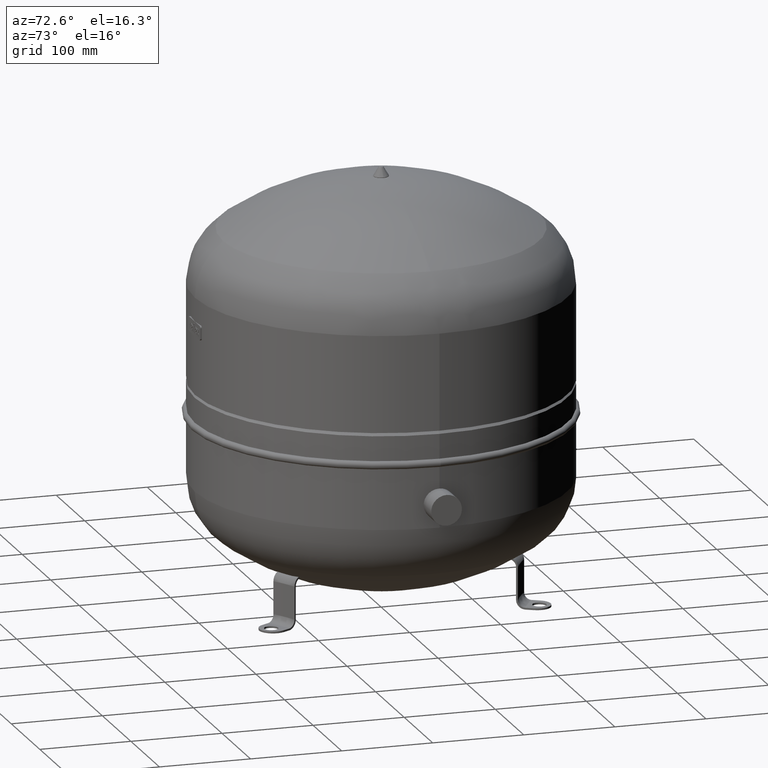
[diagram: clean part render]
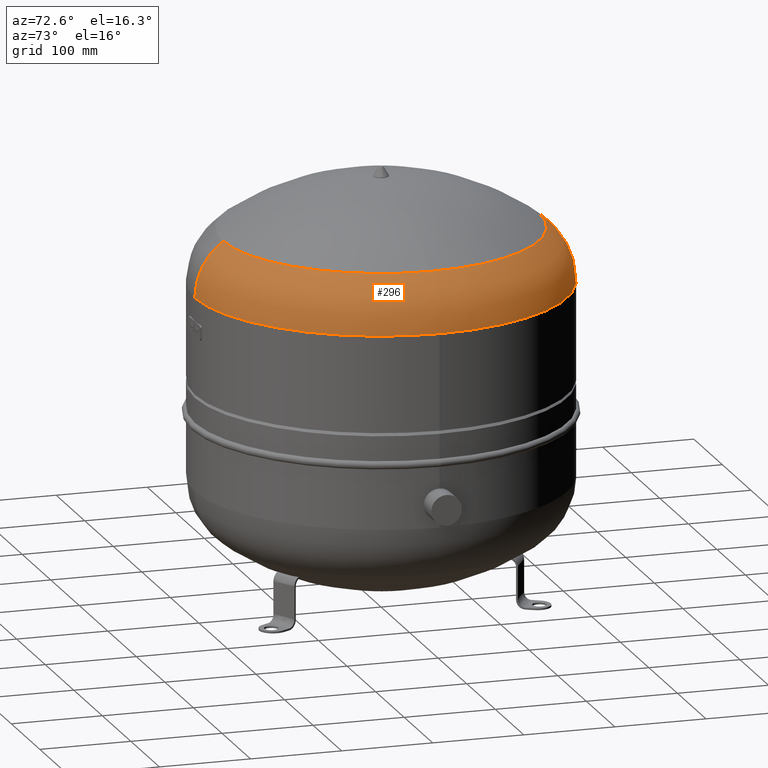
[diagram: same view with one face highlighted and labeled with its STEP entity id]
A machine part, auxiliary view. The second image highlights one B-rep face of the part: STEP entity #296.
In plain terms, the highlighted face is a freeform B-spline surface patch.
Its self-contained STEP definition (entity closure, byte-faithful):
#170=CARTESIAN_POINT('',(204.50000000000003,2.519948E-014,343.85073665903195));
#171=VERTEX_POINT('',#170);
#178=CARTESIAN_POINT('',(4.072433E-015,-204.5,343.85073665903201));
#179=VERTEX_POINT('',#178);
#180=CARTESIAN_POINT('',(3.012668E-017,1.562778E-016,343.85073665903195));
#181=DIRECTION('',(0.0,0.0,1.0));
#182=DIRECTION('',(-1.0,0.0,0.0));
#183=AXIS2_PLACEMENT_3D('',#180,#181,#182);
#184=CIRCLE('',#183,204.5);
#185=EDGE_CURVE('',#179,#171,#184,.T.);
#197=CARTESIAN_POINT('',(-3.213975E-015,59.500000000000057,343.85073665903184));
#198=CARTESIAN_POINT('',(-6.465720E-016,59.500000000000028,416.35073665903178));
#199=CARTESIAN_POINT('',(-9.524968E-015,132.00000000000006,416.35073665903184));
#200=CARTESIAN_POINT('',(-1.840336E-014,204.50000000000011,416.35073665903184));
#201=CARTESIAN_POINT('',(-2.097077E-014,204.50000000000006,343.85073665903178));
#202=CARTESIAN_POINT('',(-59.500000000000043,59.500000000000036,343.85073665903184));
#203=CARTESIAN_POINT('',(-59.5,59.500000000000007,416.35073665903184));
#204=CARTESIAN_POINT('',(-132.00000000000006,132.00000000000003,416.35073665903184));
#205=CARTESIAN_POINT('',(-204.50000000000009,204.50000000000006,416.35073665903184));
#206=CARTESIAN_POINT('',(-204.50000000000003,204.5,343.85073665903178));
#207=CARTESIAN_POINT('',(-59.50000000000005,-7.130130E-015,343.85073665903184));
#208=CARTESIAN_POINT('',(-59.500000000000014,6.187904E-015,416.35073665903178));
#209=CARTESIAN_POINT('',(-132.00000000000006,-2.690492E-015,416.3507366590319));
#210=CARTESIAN_POINT('',(-204.50000000000011,-1.156889E-014,416.35073665903184));
#211=CARTESIAN_POINT('',(-204.50000000000006,-2.488692E-014,343.85073665903184));
#212=CARTESIAN_POINT('',(-59.500000000000021,-59.500000000000057,343.85073665903184));
#213=CARTESIAN_POINT('',(-59.499999999999986,-59.499999999999993,416.35073665903184));
#214=CARTESIAN_POINT('',(-132.0,-132.00000000000003,416.35073665903195));
#215=CARTESIAN_POINT('',(-204.50000000000003,-204.50000000000006,416.35073665903195));
#216=CARTESIAN_POINT('',(-204.5,-204.50000000000003,343.8507366590319));
#217=CARTESIAN_POINT('',(1.135884E-014,-59.500000000000057,343.85073665903184));
#218=CARTESIAN_POINT('',(1.392624E-014,-59.5,416.35073665903178));
#219=CARTESIAN_POINT('',(2.280464E-014,-132.00000000000006,416.35073665903195));
#220=CARTESIAN_POINT('',(3.168304E-014,-204.50000000000011,416.35073665903195));
#221=CARTESIAN_POINT('',(2.911563E-014,-204.50000000000006,343.8507366590319));
#222=CARTESIAN_POINT('',(59.500000000000057,-59.500000000000036,343.85073665903184));
#223=CARTESIAN_POINT('',(59.500000000000014,-59.499999999999979,416.35073665903184));
#224=CARTESIAN_POINT('',(132.00000000000006,-132.0,416.35073665903195));
#225=CARTESIAN_POINT('',(204.50000000000009,-204.50000000000003,416.35073665903195));
#226=CARTESIAN_POINT('',(204.50000000000003,-204.5,343.8507366590319));
#227=CARTESIAN_POINT('',(59.500000000000064,7.442686E-015,343.85073665903184));
#228=CARTESIAN_POINT('',(59.500000000000021,2.076072E-014,416.35073665903178));
#229=CARTESIAN_POINT('',(132.00000000000006,2.963912E-014,416.3507366590319));
#230=CARTESIAN_POINT('',(204.50000000000011,3.851751E-014,416.35073665903184));
#231=CARTESIAN_POINT('',(204.50000000000006,2.519948E-014,343.85073665903184));
#232=CARTESIAN_POINT('',(59.500000000000043,59.500000000000057,343.85073665903184));
#233=CARTESIAN_POINT('',(59.5,59.500000000000021,416.35073665903184));
#234=CARTESIAN_POINT('',(132.0,132.00000000000006,416.35073665903184));
#235=CARTESIAN_POINT('',(204.50000000000003,204.50000000000009,416.35073665903184));
#236=CARTESIAN_POINT('',(204.5,204.50000000000003,343.85073665903178));
#237=CARTESIAN_POINT('',(-3.213975E-015,59.500000000000057,343.85073665903184));
#238=CARTESIAN_POINT('',(-6.465720E-016,59.500000000000028,416.35073665903178));
#239=CARTESIAN_POINT('',(-9.524968E-015,132.00000000000006,416.35073665903184));
#240=CARTESIAN_POINT('',(-1.840336E-014,204.50000000000011,416.35073665903184));
#241=CARTESIAN_POINT('',(-2.097077E-014,204.50000000000006,343.85073665903178));
#249=(BOUNDED_SURFACE()B_SPLINE_SURFACE(2,2,((#197,#202,#207,#212,#217,#222,#227,#232,#237),(#198,#203,#208,#213,#218,#223,#228,#233,#238),(#199,#204,#209,#214,#219,#224,#229,#234,#239),(#200,#205,#210,#215,#220,#225,#230,#235,#240),(#201,#206,#211,#216,#221,#226,#231,#236,#241)),.UNSPECIFIED.,.F.,.T.,.U.)B_SPLINE_SURFACE_WITH_KNOTS((3,2,3),(3,2,2,2,3),(-3.141592653589794,-1.570796326794897,5.181523E-016),(0.0,1.570796326794897,3.141592653589793,4.71238898038469,6.283185307179586),.UNSPECIFIED.)GEOMETRIC_REPRESENTATION_ITEM()RATIONAL_B_SPLINE_SURFACE(((1.0,0.707106781186548,1.0,0.707106781186548,1.0,0.707106781186548,1.0,0.707106781186548,1.0),(0.707106781186547,0.5,0.707106781186547,0.5,0.707106781186547,0.5,0.707106781186547,0.5,0.707106781186547),(1.0,0.707106781186548,1.0,0.707106781186548,1.0,0.707106781186548,1.0,0.707106781186548,1.0),(0.707106781186546,0.499999999999999,0.707106781186546,0.499999999999999,0.707106781186546,0.499999999999999,0.707106781186546,0.499999999999999,0.707106781186546),(1.0,0.707106781186548,1.0,0.707106781186548,1.0,0.707106781186548,1.0,0.707106781186548,1.0)))REPRESENTATION_ITEM('')SURFACE());
#250=CARTESIAN_POINT('',(6.174921E-015,-173.60869565217396,403.22216451894423));
#251=VERTEX_POINT('',#250);
#252=CARTESIAN_POINT('',(4.072433E-015,-132.00000000000006,343.85073665903195));
#253=DIRECTION('',(-1.0,0.0,0.0));
#254=DIRECTION('',(0.0,-1.0,0.0));
#255=AXIS2_PLACEMENT_3D('',#252,#253,#254);
#256=CIRCLE('',#255,72.5);
#257=EDGE_CURVE('',#179,#251,#256,.T.);
#258=ORIENTED_EDGE('',*,*,#257,.F.);
#259=ORIENTED_EDGE('',*,*,#185,.T.);
#260=CARTESIAN_POINT('',(-2.097077E-014,204.5,343.8507366590319));
#261=VERTEX_POINT('',#260);
#262=CARTESIAN_POINT('',(3.012668E-017,1.562778E-016,343.85073665903195));
#263=DIRECTION('',(0.0,0.0,1.0));
#264=DIRECTION('',(-1.0,0.0,0.0));
#265=AXIS2_PLACEMENT_3D('',#262,#263,#264);
#266=CIRCLE('',#265,204.5);
#267=EDGE_CURVE('',#171,#261,#266,.T.);
#268=ORIENTED_EDGE('',*,*,#267,.T.);
#269=CARTESIAN_POINT('',(-1.508531E-014,173.60869565217396,403.22216451894411));
#270=VERTEX_POINT('',#269);
#271=CARTESIAN_POINT('',(-1.209237E-014,132.00000000000006,343.85073665903184));
#272=DIRECTION('',(1.0,0.0,0.0));
#273=DIRECTION('',(0.0,1.0,0.0));
#274=AXIS2_PLACEMENT_3D('',#271,#272,#273);
#275=CIRCLE('',#274,72.5);
#276=EDGE_CURVE('',#261,#270,#275,.T.);
#277=ORIENTED_EDGE('',*,*,#276,.T.);
#278=CARTESIAN_POINT('',(173.60869565217396,-3.444319E-014,403.22216451894417));
#279=VERTEX_POINT('',#278);
#280=CARTESIAN_POINT('',(2.132615E-015,1.106263E-014,403.22216451894417));
#281=DIRECTION('',(0.0,0.0,1.0));
#282=DIRECTION('',(-1.0,0.0,0.0));
#283=AXIS2_PLACEMENT_3D('',#280,#281,#282);
#284=CIRCLE('',#283,173.60869565217396);
#285=EDGE_CURVE('',#279,#270,#284,.T.);
#286=ORIENTED_EDGE('',*,*,#285,.F.);
#287=CARTESIAN_POINT('',(2.132615E-015,1.106263E-014,403.22216451894417));
#288=DIRECTION('',(0.0,0.0,1.0));
#289=DIRECTION('',(-1.0,0.0,0.0));
#290=AXIS2_PLACEMENT_3D('',#287,#288,#289);
#291=CIRCLE('',#290,173.60869565217396);
#292=EDGE_CURVE('',#251,#279,#291,.T.);
#293=ORIENTED_EDGE('',*,*,#292,.F.);
#294=EDGE_LOOP('',(#258,#259,#268,#277,#286,#293));
#295=FACE_OUTER_BOUND('',#294,.T.);
#296=ADVANCED_FACE('',(#295),#249,.T.);